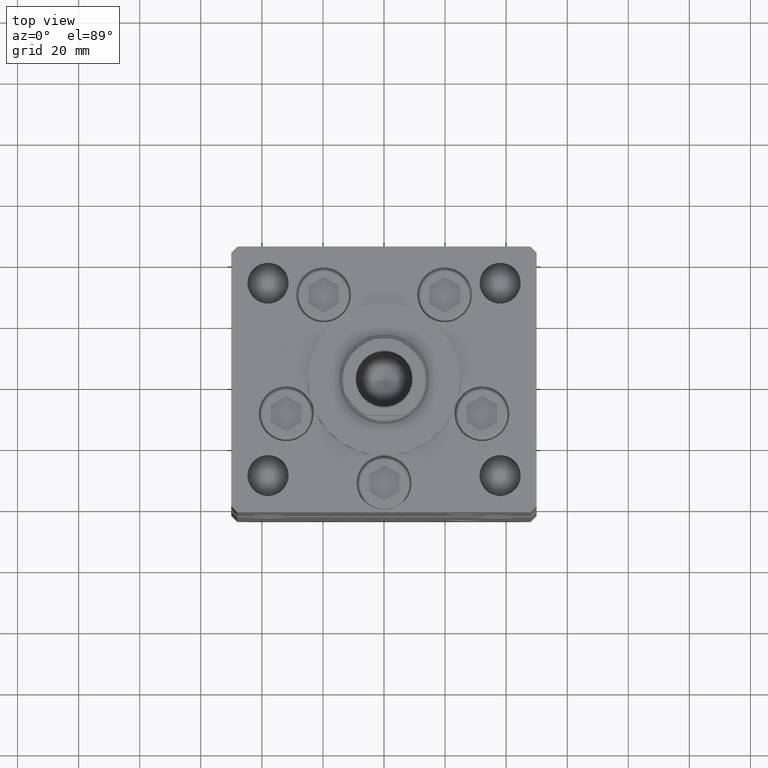
[diagram: clean part render]
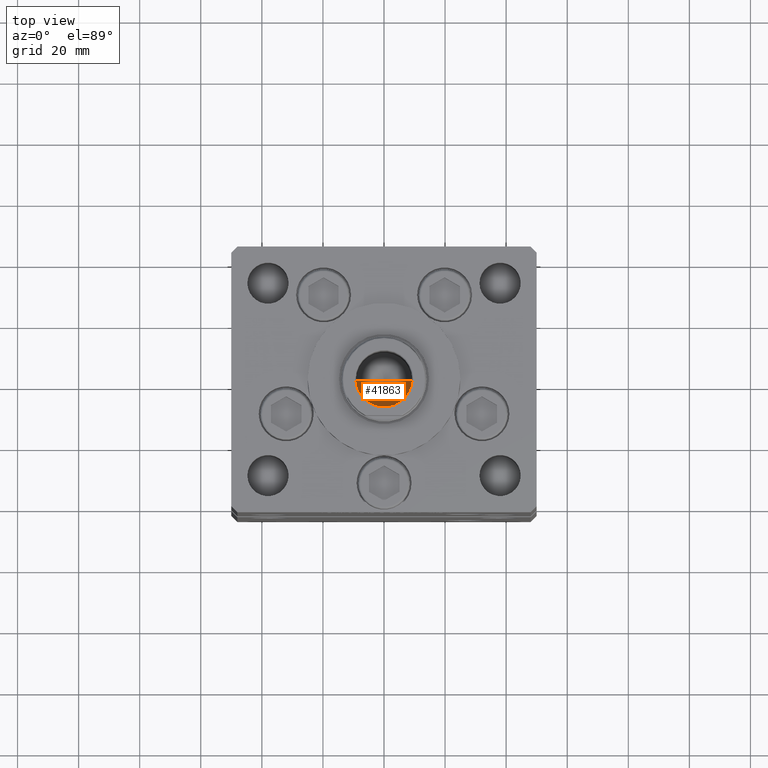
[diagram: same view with one face highlighted and labeled with its STEP entity id]
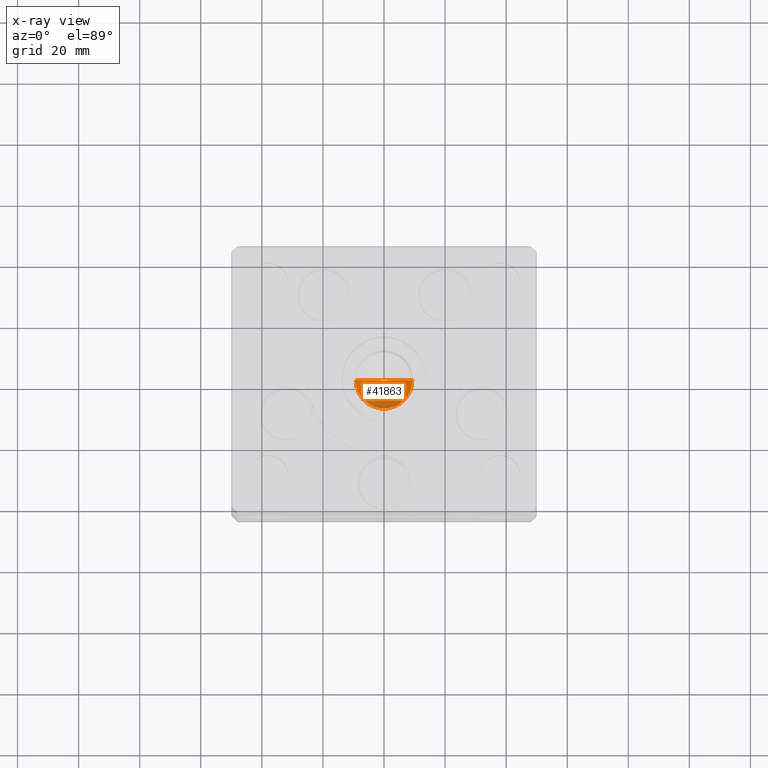
[diagram: x-ray of the same camera — body ghosted, the highlighted face saturated]
A machine part, top view. The second image highlights one B-rep face of the part: STEP entity #41863.
The next image is the same camera in x-ray: the body ghosted, the highlighted face saturated — about 9% of this face is hidden behind the body in this view.
In plain terms, the highlighted conical surface has half-angle 59 deg.
Its self-contained STEP definition (entity closure, byte-faithful):
#1315 = CARTESIAN_POINT ( 'NONE',  ( -9.249999999999994671, 1.132798289211300909E-15, 130.2500000000000000 ) ) ;
#3003 = VECTOR ( 'NONE', #25772, 1000.000000000000000 ) ;
#5251 = DIRECTION ( 'NONE',  ( -0.000000000000000000, -0.000000000000000000, 1.000000000000000000 ) ) ;
#7346 = DIRECTION ( 'NONE',  ( -0.000000000000000000, -0.000000000000000000, 1.000000000000000000 ) ) ;
#8266 = CARTESIAN_POINT ( 'NONE',  ( 9.249999999999994671, 0.000000000000000000, 130.2500000000000000 ) ) ;
#8755 = CIRCLE ( 'NONE', #43060, 9.249999999999994671 ) ;
#9654 = CARTESIAN_POINT ( 'NONE',  ( 9.249999999999994671, 0.000000000000000000, 130.2500000000000000 ) ) ;
#14648 = EDGE_CURVE ( 'NONE', #36155, #39461, #21995, .T. ) ;
#16936 = CARTESIAN_POINT ( 'NONE',  ( -1.046994375366439223E-14, 0.000000000000000000, 124.6920392739950643 ) ) ;
#21995 = LINE ( 'NONE', #9654, #3003 ) ;
#22503 = EDGE_CURVE ( 'NONE', #36155, #25852, #38372, .T. ) ;
#25772 = DIRECTION ( 'NONE',  ( 0.8571673007021117785, 0.000000000000000000, 0.5150380749100550437 ) ) ;
#25852 = VERTEX_POINT ( 'NONE', #27417 ) ;
#27417 = CARTESIAN_POINT ( 'NONE',  ( -9.249999999999994671, 1.132798289211300909E-15, 130.2500000000000000 ) ) ;
#27767 = FACE_OUTER_BOUND ( 'NONE', #44017, .T. ) ;
#29178 = ORIENTED_EDGE ( 'NONE', *, *, #39748, .T. ) ;
#30679 = VECTOR ( 'NONE', #45384, 1000.000000000000000 ) ;
#31009 = DIRECTION ( 'NONE',  ( 1.000000000000000000, 0.000000000000000000, 0.000000000000000000 ) ) ;
#36155 = VERTEX_POINT ( 'NONE', #16936 ) ;
#38270 = ORIENTED_EDGE ( 'NONE', *, *, #14648, .F. ) ;
#38372 = LINE ( 'NONE', #1315, #30679 ) ;
#39461 = VERTEX_POINT ( 'NONE', #8266 ) ;
#39748 = EDGE_CURVE ( 'NONE', #25852, #39461, #8755, .T. ) ;
#40883 = CONICAL_SURFACE ( 'NONE', #45180, 9.249999999999994671, 1.029744258676653423 ) ;
#41863 = ADVANCED_FACE ( 'NONE', ( #27767 ), #40883, .F. ) ;
#42030 = CARTESIAN_POINT ( 'NONE',  ( 0.000000000000000000, 0.000000000000000000, 130.2500000000000000 ) ) ;
#43060 = AXIS2_PLACEMENT_3D ( 'NONE', #42030, #5251, #49582 ) ;
#44017 = EDGE_LOOP ( 'NONE', ( #38270, #51262, #29178 ) ) ;
#44135 = CARTESIAN_POINT ( 'NONE',  ( 0.000000000000000000, 0.000000000000000000, 130.2500000000000000 ) ) ;
#45180 = AXIS2_PLACEMENT_3D ( 'NONE', #44135, #7346, #31009 ) ;
#45384 = DIRECTION ( 'NONE',  ( -0.8571673007021117785, 1.049727191138617956E-16, 0.5150380749100550437 ) ) ;
#49582 = DIRECTION ( 'NONE',  ( 1.000000000000000000, 0.000000000000000000, 0.000000000000000000 ) ) ;
#51262 = ORIENTED_EDGE ( 'NONE', *, *, #22503, .T. ) ;